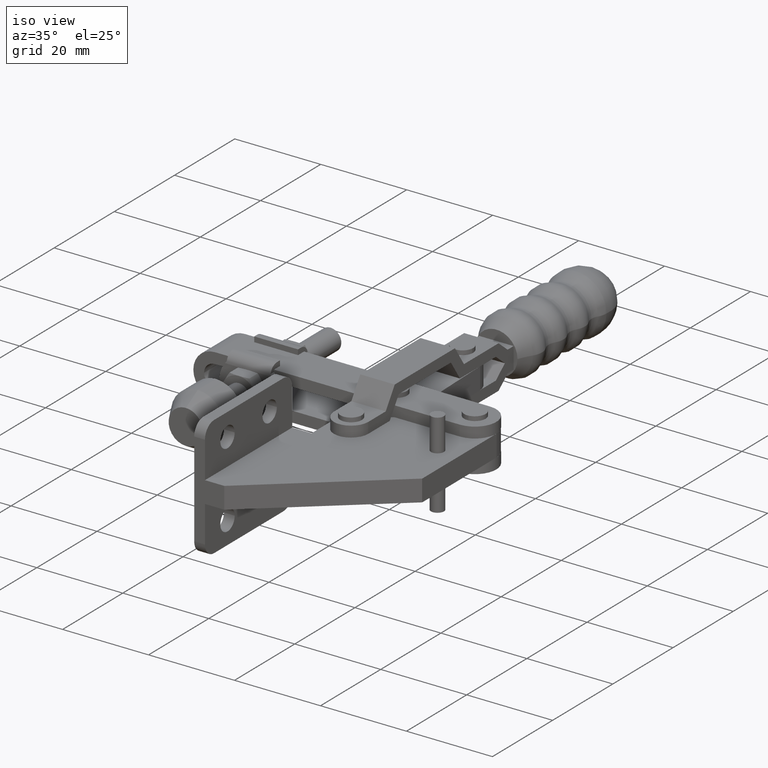
[diagram: clean part render]
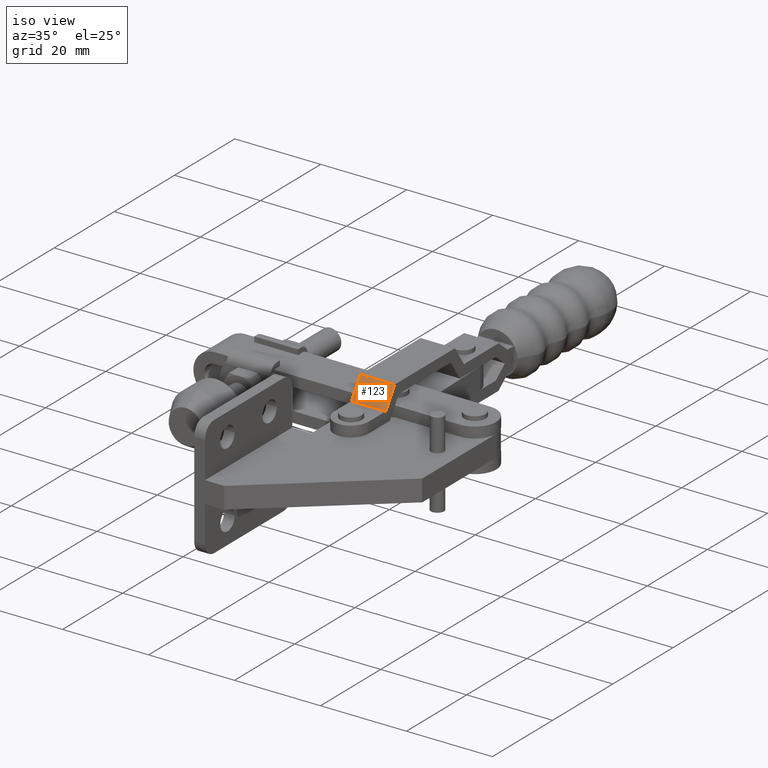
[diagram: same view with one face highlighted and labeled with its STEP entity id]
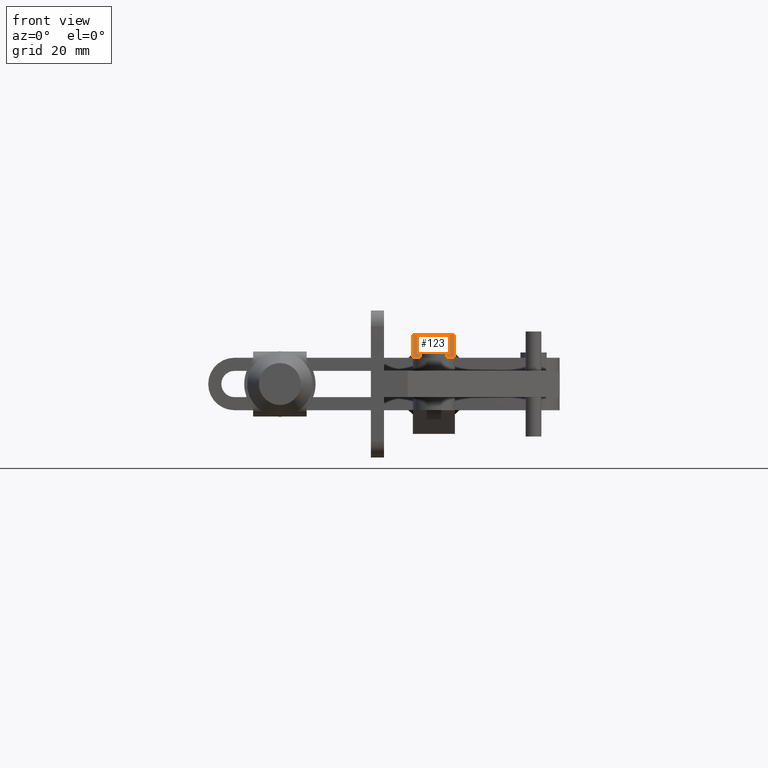
[diagram: same view with one face highlighted and labeled with its STEP entity id]
A machine part, iso view. The second image highlights one B-rep face of the part: STEP entity #123.
A second angle (front view) of the same face is appended — the face is thin or edge-on in the first view.
In plain terms, the highlighted planar face has unit normal (0, 0.8321, -0.5547).
Its self-contained STEP definition (entity closure, byte-faithful):
#123 = ADVANCED_FACE ( 'NONE', ( #2148 ), #7709, .F. ) ;
#210 = VERTEX_POINT ( 'NONE', #3095 ) ;
#599 = DIRECTION ( 'NONE',  ( 9.524355967200147200E-016, 0.8320502943378331700, -0.5547001962252448000 ) ) ;
#1006 = VECTOR ( 'NONE', #3653, 1000.000000000000000 ) ;
#1221 = DIRECTION ( 'NONE',  ( 1.373142243848756200E-015, -0.5547001962252449100, -0.8320502943378331700 ) ) ;
#1262 = ORIENTED_EDGE ( 'NONE', *, *, #4487, .F. ) ;
#1525 = EDGE_CURVE ( 'NONE', #210, #5450, #3096, .T. ) ;
#1943 = CARTESIAN_POINT ( 'NONE',  ( -19.99999999999990100, 18.79999999999987300, 4.999999999999989300 ) ) ;
#2049 = ORIENTED_EDGE ( 'NONE', *, *, #3445, .T. ) ;
#2148 = FACE_OUTER_BOUND ( 'NONE', #6852, .T. ) ;
#2561 = LINE ( 'NONE', #5558, #4426 ) ;
#2697 = AXIS2_PLACEMENT_3D ( 'NONE', #5315, #599, #6131 ) ;
#3020 = LINE ( 'NONE', #1943, #8405 ) ;
#3095 = CARTESIAN_POINT ( 'NONE',  ( -19.99999999999992200, 21.79999999999993000, 9.499999999999984000 ) ) ;
#3096 = LINE ( 'NONE', #3610, #1006 ) ;
#3152 = EDGE_CURVE ( 'NONE', #210, #7122, #2561, .T. ) ;
#3445 = EDGE_CURVE ( 'NONE', #7122, #4993, #7025, .T. ) ;
#3610 = CARTESIAN_POINT ( 'NONE',  ( -19.99999999999990100, 18.79999999999987300, 4.999999999999989300 ) ) ;
#3653 = DIRECTION ( 'NONE',  ( 1.373142243848756200E-015, -0.5547001962252449100, -0.8320502943378331700 ) ) ;
#4288 = DIRECTION ( 'NONE',  ( -1.000000000000000000, -6.139581518573801300E-031, -1.562756255276106900E-015 ) ) ;
#4426 = VECTOR ( 'NONE', #7132, 1000.000000000000000 ) ;
#4487 = EDGE_CURVE ( 'NONE', #5450, #4993, #3020, .T. ) ;
#4848 = CARTESIAN_POINT ( 'NONE',  ( -19.99999999999990100, 18.79999999999987300, 4.999999999999989300 ) ) ;
#4993 = VERTEX_POINT ( 'NONE', #5777 ) ;
#5161 = CARTESIAN_POINT ( 'NONE',  ( -27.99999999999990800, 18.79999999999985900, 4.999999999999984000 ) ) ;
#5315 = CARTESIAN_POINT ( 'NONE',  ( -19.99999999999990100, 18.79999999999987300, 4.999999999999989300 ) ) ;
#5450 = VERTEX_POINT ( 'NONE', #4848 ) ;
#5556 = ORIENTED_EDGE ( 'NONE', *, *, #3152, .T. ) ;
#5558 = CARTESIAN_POINT ( 'NONE',  ( -19.99999999999992200, 21.79999999999993000, 9.499999999999984000 ) ) ;
#5777 = CARTESIAN_POINT ( 'NONE',  ( -27.99999999999990800, 18.79999999999985900, 4.999999999999984000 ) ) ;
#6131 = DIRECTION ( 'NONE',  ( -1.373142243848756000E-015, 0.5547001962252448000, 0.8320502943378331700 ) ) ;
#6598 = ORIENTED_EDGE ( 'NONE', *, *, #1525, .F. ) ;
#6852 = EDGE_LOOP ( 'NONE', ( #2049, #1262, #6598, #5556 ) ) ;
#7025 = LINE ( 'NONE', #5161, #8930 ) ;
#7122 = VERTEX_POINT ( 'NONE', #7219 ) ;
#7132 = DIRECTION ( 'NONE',  ( -1.000000000000000000, -6.139581518573801300E-031, -1.562756255276106900E-015 ) ) ;
#7219 = CARTESIAN_POINT ( 'NONE',  ( -27.99999999999992200, 21.79999999999994400, 9.499999999999976900 ) ) ;
#7709 = PLANE ( 'NONE',  #2697 ) ;
#8405 = VECTOR ( 'NONE', #4288, 1000.000000000000000 ) ;
#8930 = VECTOR ( 'NONE', #1221, 1000.000000000000000 ) ;